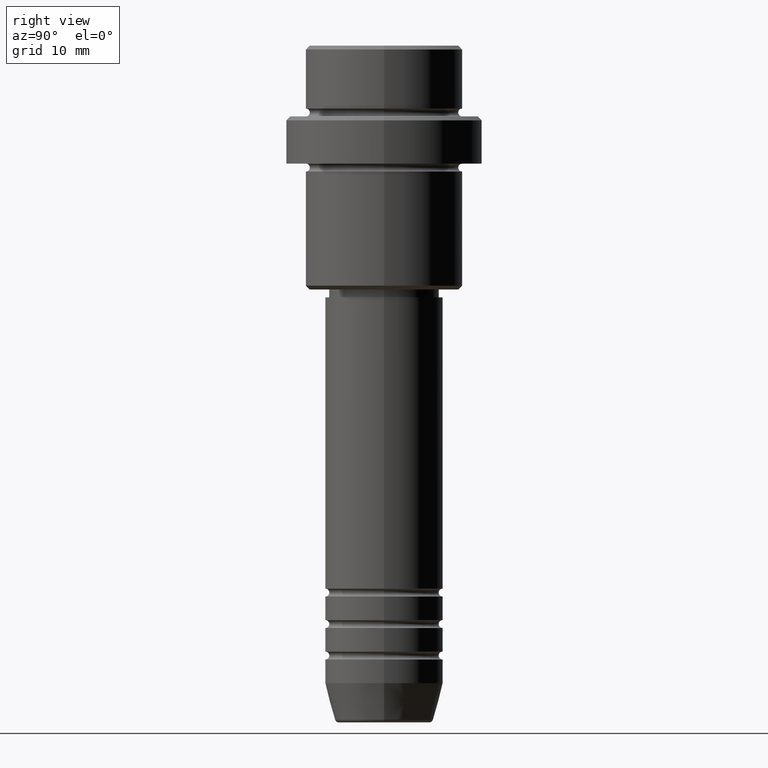
[diagram: clean part render]
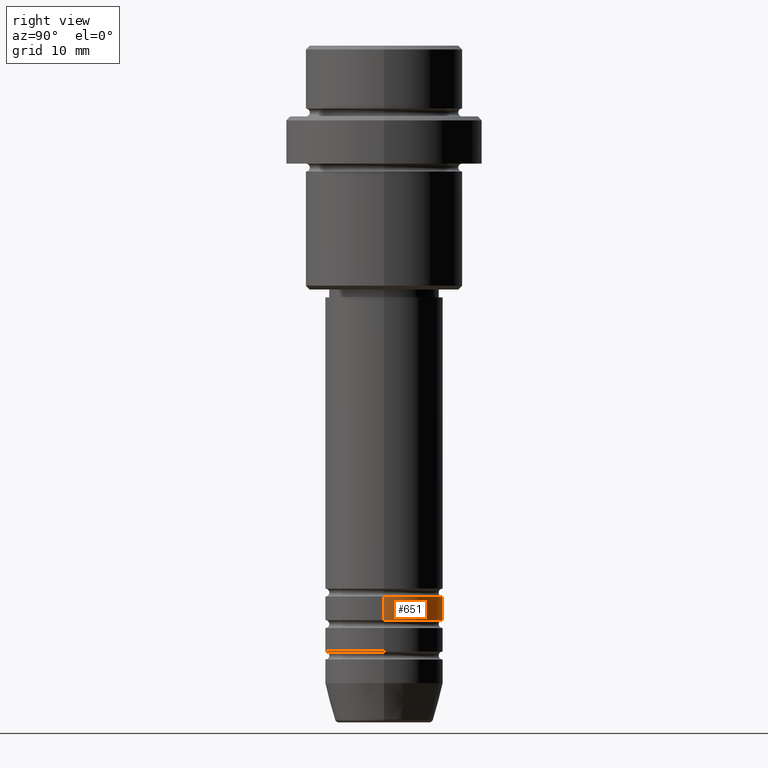
[diagram: same view with one face highlighted and labeled with its STEP entity id]
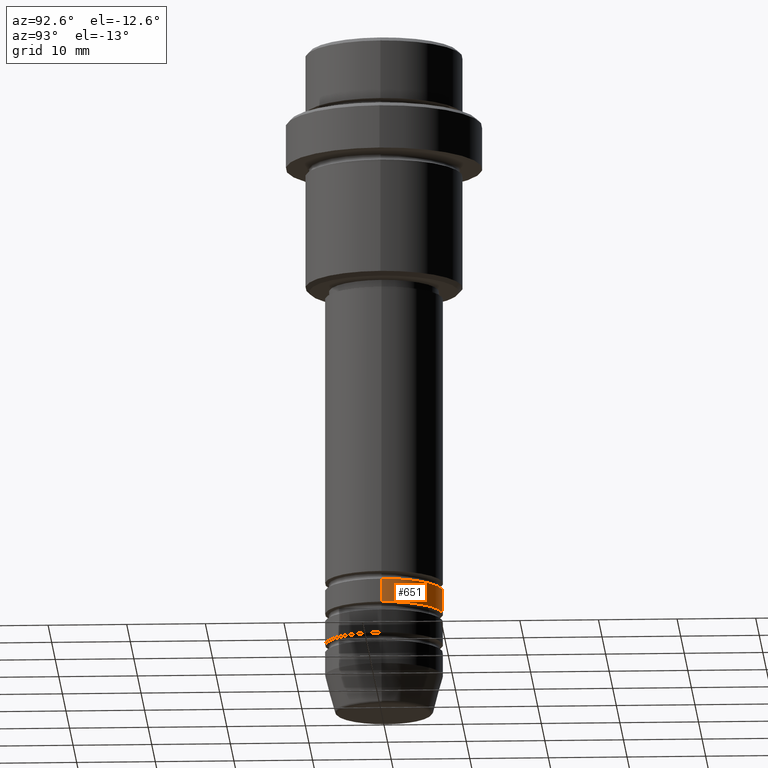
[diagram: same view with one face highlighted and labeled with its STEP entity id]
A machine part, right view. The second image highlights one B-rep face of the part: STEP entity #651.
A second angle (auxiliary view) of the same face is appended — the face is thin or edge-on in the first view.
In plain terms, the highlighted cylindrical surface (partial cylindrical patch) has radius 7.5 mm, axis along (-0, -0, 1).
Its self-contained STEP definition (entity closure, byte-faithful):
#19 = CARTESIAN_POINT ( 'NONE',  ( 7.500000000000000000, 0.000000000000000000, -69.99999999999990052 ) ) ;
#73 = DIRECTION ( 'NONE',  ( -0.000000000000000000, -0.000000000000000000, 1.000000000000000000 ) ) ;
#96 = VERTEX_POINT ( 'NONE', #573 ) ;
#145 = DIRECTION ( 'NONE',  ( -0.000000000000000000, -0.000000000000000000, 1.000000000000000000 ) ) ;
#160 = DIRECTION ( 'NONE',  ( 1.000000000000000000, 0.000000000000000000, 0.000000000000000000 ) ) ;
#211 = DIRECTION ( 'NONE',  ( -0.000000000000000000, -0.000000000000000000, 1.000000000000000000 ) ) ;
#278 = CARTESIAN_POINT ( 'NONE',  ( -7.500000000000000000, 9.184850993605147944E-16, -69.99999999999990052 ) ) ;
#291 = VECTOR ( 'NONE', #211, 1000.000000000000000 ) ;
#302 = EDGE_CURVE ( 'NONE', #866, #995, #377, .T. ) ;
#315 = ORIENTED_EDGE ( 'NONE', *, *, #800, .F. ) ;
#377 = CIRCLE ( 'NONE', #509, 7.500000000000000000 ) ;
#411 = CYLINDRICAL_SURFACE ( 'NONE', #637, 7.500000000000000000 ) ;
#478 = CARTESIAN_POINT ( 'NONE',  ( -7.500000000000000000, 9.184850993605147944E-16, -72.99999999999990052 ) ) ;
#495 = DIRECTION ( 'NONE',  ( 1.000000000000000000, 0.000000000000000000, 0.000000000000000000 ) ) ;
#509 = AXIS2_PLACEMENT_3D ( 'NONE', #644, #145, #160 ) ;
#510 = FACE_OUTER_BOUND ( 'NONE', #843, .T. ) ;
#573 = CARTESIAN_POINT ( 'NONE',  ( 7.500000000000000000, 0.000000000000000000, -72.99999999999990052 ) ) ;
#613 = AXIS2_PLACEMENT_3D ( 'NONE', #815, #913, #1045 ) ;
#637 = AXIS2_PLACEMENT_3D ( 'NONE', #869, #73, #495 ) ;
#644 = CARTESIAN_POINT ( 'NONE',  ( 0.000000000000000000, 0.000000000000000000, -69.99999999999990052 ) ) ;
#651 = ADVANCED_FACE ( 'NONE', ( #510 ), #411, .T. ) ;
#699 = ORIENTED_EDGE ( 'NONE', *, *, #302, .F. ) ;
#738 = VECTOR ( 'NONE', #1087, 1000.000000000000000 ) ;
#795 = CARTESIAN_POINT ( 'NONE',  ( -7.500000000000000000, 9.184850993605147944E-16, 0.000000000000000000 ) ) ;
#800 = EDGE_CURVE ( 'NONE', #96, #866, #994, .T. ) ;
#815 = CARTESIAN_POINT ( 'NONE',  ( 0.000000000000000000, 0.000000000000000000, -72.99999999999990052 ) ) ;
#824 = EDGE_CURVE ( 'NONE', #1265, #995, #1309, .T. ) ;
#843 = EDGE_LOOP ( 'NONE', ( #1357, #1318, #699, #315 ) ) ;
#866 = VERTEX_POINT ( 'NONE', #19 ) ;
#869 = CARTESIAN_POINT ( 'NONE',  ( 0.000000000000000000, 0.000000000000000000, 0.000000000000000000 ) ) ;
#913 = DIRECTION ( 'NONE',  ( -0.000000000000000000, -0.000000000000000000, 1.000000000000000000 ) ) ;
#994 = LINE ( 'NONE', #1315, #291 ) ;
#995 = VERTEX_POINT ( 'NONE', #278 ) ;
#1014 = CIRCLE ( 'NONE', #613, 7.500000000000000000 ) ;
#1045 = DIRECTION ( 'NONE',  ( 1.000000000000000000, 0.000000000000000000, 0.000000000000000000 ) ) ;
#1087 = DIRECTION ( 'NONE',  ( -0.000000000000000000, -0.000000000000000000, 1.000000000000000000 ) ) ;
#1265 = VERTEX_POINT ( 'NONE', #478 ) ;
#1309 = LINE ( 'NONE', #795, #738 ) ;
#1315 = CARTESIAN_POINT ( 'NONE',  ( 7.500000000000000000, 0.000000000000000000, 0.000000000000000000 ) ) ;
#1318 = ORIENTED_EDGE ( 'NONE', *, *, #824, .T. ) ;
#1322 = EDGE_CURVE ( 'NONE', #96, #1265, #1014, .T. ) ;
#1357 = ORIENTED_EDGE ( 'NONE', *, *, #1322, .T. ) ;